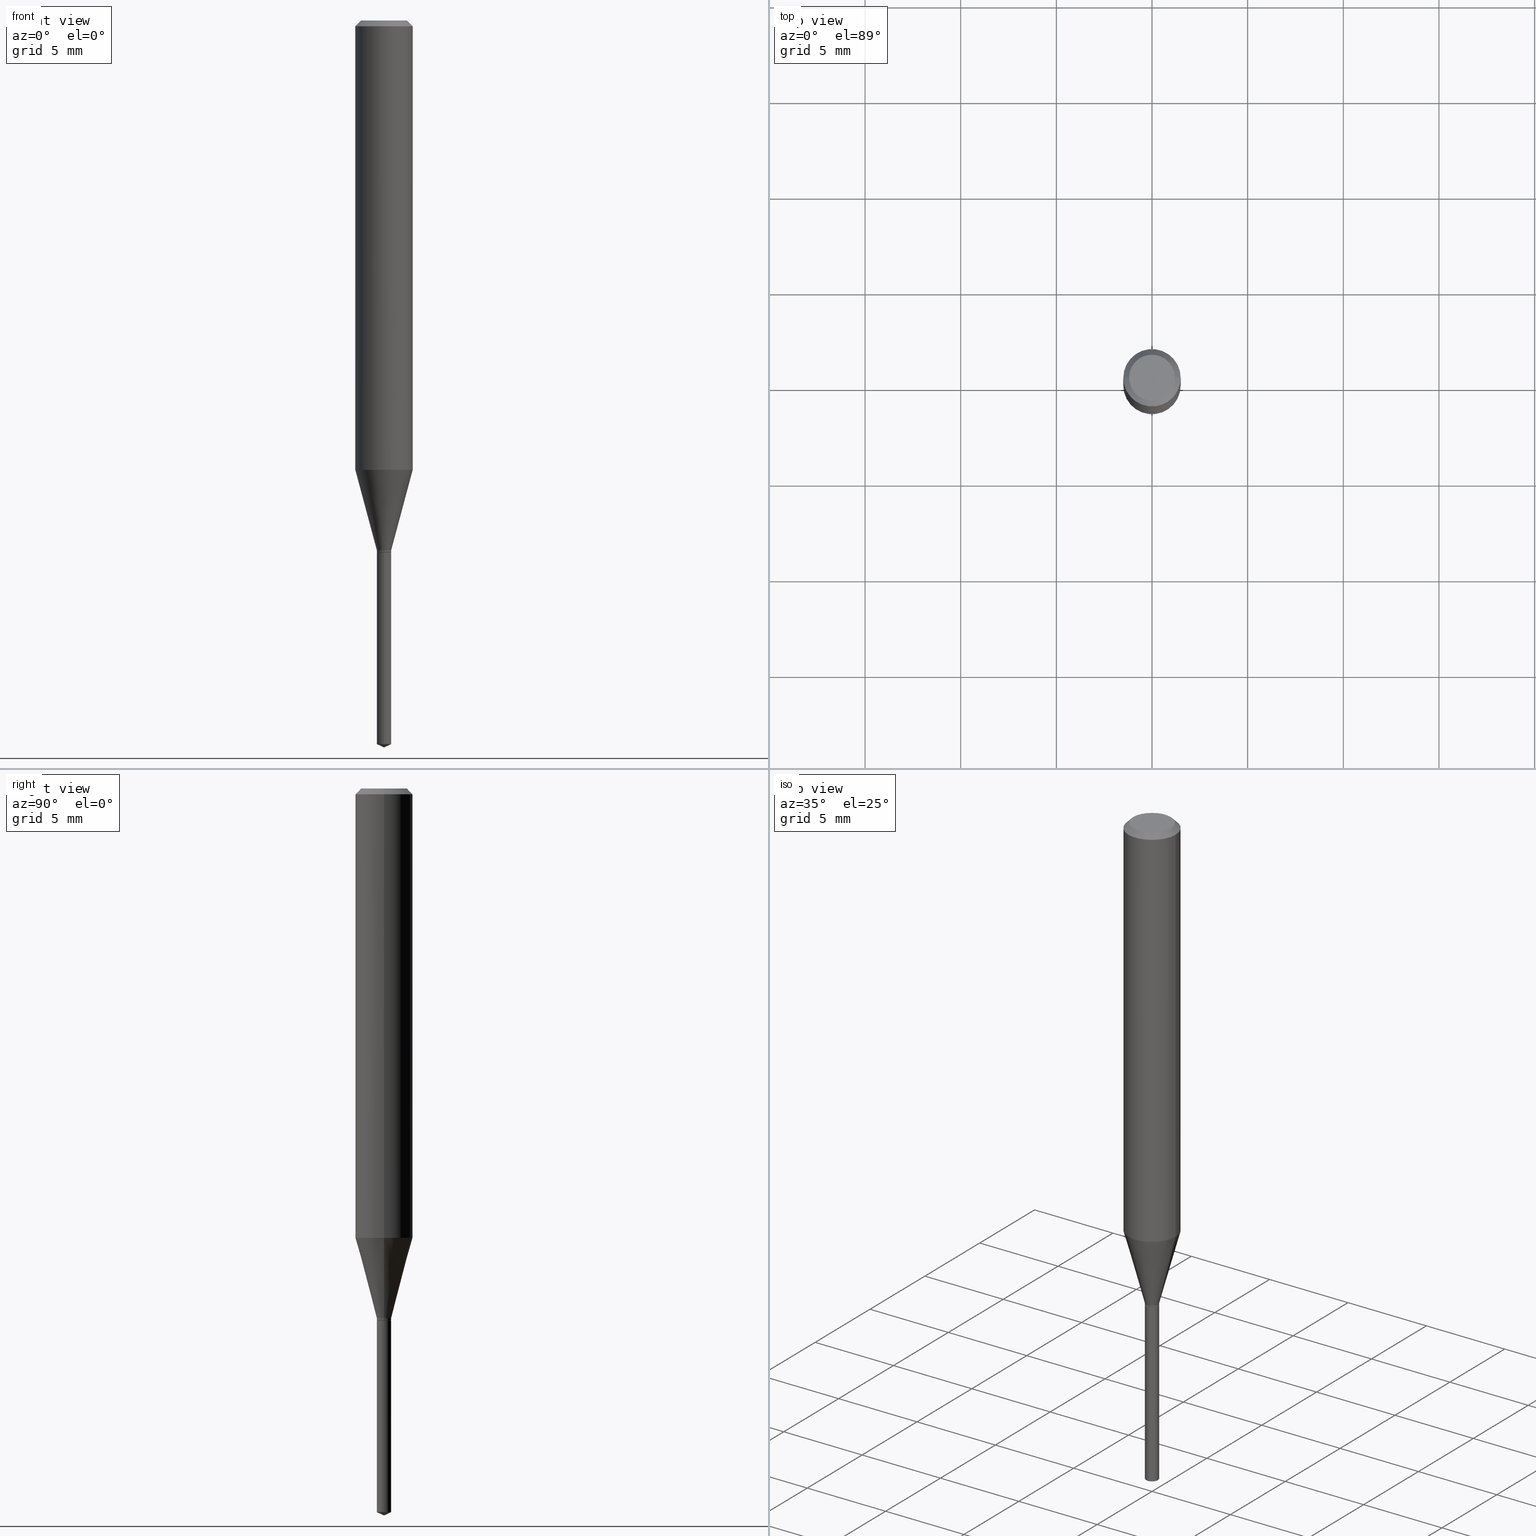
[diagram: canonical four-view strip — front | top / right | iso, engineering-drawing reading convention]
A machine part, canonical four-view strip (front | top / right | iso — engineering-drawing reading convention). The complete STEP part file that produces these views, byte-faithful:
ISO-10303-21;
HEADER;
FILE_DESCRIPTION (( 'STEP AP203' ),
    '1' );
FILE_NAME ('07450.STEP',
    '2024-04-23T21:34:43',
    ( '' ),
    ( '' ),
    'SwSTEP 2.0',
    'SolidWorks 2023',
    '' );
FILE_SCHEMA (( 'CONFIG_CONTROL_DESIGN' ));
ENDSEC;

DATA;
#1 = DIRECTION ( 'NONE',  ( 1.000000000000000000, -6.982962677686266711E-15, 0.000000000000000000 ) ) ;
#2 = CARTESIAN_POINT ( 'NONE',  ( -0.04724000000000000421, 3.504923541997677355E-16, -3.380025165670481712E-19 ) ) ;
#3 = SECURITY_CLASSIFICATION ( '', '', #101 ) ;
#4 = EDGE_CURVE ( 'NONE', #388, #144, #290, .T. ) ;
#5 = DIRECTION ( 'NONE',  ( -2.445468806185136597E-29, 3.491481338843145583E-15, 1.000000000000000000 ) ) ;
#6 = AXIS2_PLACEMENT_3D ( 'NONE', #341, #329, #196 ) ;
#7 = CARTESIAN_POINT ( 'NONE',  ( -0.01474999999999999922, -3.701258753948297685E-15, -1.090099999999999847 ) ) ;
#8 = CARTESIAN_POINT ( 'NONE',  ( 0.01425000000000000051, -3.920933543520852421E-15, -1.094500000000000028 ) ) ;
#9 =( CONVERSION_BASED_UNIT ( 'INCH', #130 ) LENGTH_UNIT ( ) NAMED_UNIT ( #183 ) );
#10 = AXIS2_PLACEMENT_3D ( 'NONE', #361, #152, #107 ) ;
#11 = DIRECTION ( 'NONE',  ( -1.000000000000000000, 6.982962677686266711E-15, 0.000000000000000000 ) ) ;
#12 = EDGE_LOOP ( 'NONE', ( #395, #24, #54, #473 ) ) ;
#13 = DIRECTION ( 'NONE',  ( -2.445468806185136877E-29, 3.491481338843145188E-15, 1.000000000000000000 ) ) ;
#14 = VERTEX_POINT ( 'NONE', #63 ) ;
#15 = MANIFOLD_SOLID_BREP ( 'Body-Move/Copy2[2]', #141 ) ;
#16 = ADVANCED_FACE ( 'NONE', ( #215 ), #252, .T. ) ;
#17 = ORIENTED_EDGE ( 'NONE', *, *, #345, .F. ) ;
#18 = AXIS2_PLACEMENT_3D ( 'NONE', #406, #82, #260 ) ;
#19 = CARTESIAN_POINT ( 'NONE',  ( 0.05905000000000010935, -3.641161664854600986E-15, -0.9247701492246986898 ) ) ;
#20 = ORIENTED_EDGE ( 'NONE', *, *, #256, .F. ) ;
#21 = ADVANCED_FACE ( 'NONE', ( #365 ), #28, .F. ) ;
#22 = VERTEX_POINT ( 'NONE', #147 ) ;
#23 = FACE_OUTER_BOUND ( 'NONE', #356, .T. ) ;
#24 = ORIENTED_EDGE ( 'NONE', *, *, #184, .T. ) ;
#25 = PERSON_AND_ORGANIZATION ( #156, #133 ) ;
#26 = CC_DESIGN_APPROVAL ( #436, ( #3 ) ) ;
#27 = ADVANCED_FACE ( 'NONE', ( #444 ), #104, .T. ) ;
#28 = PLANE ( 'NONE',  #165 ) ;
#29 = DATE_AND_TIME ( #109, #305 ) ;
#30 = EDGE_CURVE ( 'NONE', #310, #244, #372, .T. ) ;
#31 = FACE_OUTER_BOUND ( 'NONE', #12, .T. ) ;
#32 = ORIENTED_EDGE ( 'NONE', *, *, #312, .T. ) ;
#33 = PERSON_AND_ORGANIZATION ( #156, #133 ) ;
#34 = LINE ( 'NONE', #7, #81 ) ;
#35 = ADVANCED_FACE ( 'NONE', ( #298 ), #181, .T. ) ;
#36 = APPROVAL_ROLE ( '' ) ;
#37 = LOCAL_TIME ( 17, 34, 43.00000000000000000, #446 ) ;
#38 = DIRECTION ( 'NONE',  ( -6.982962677686268288E-15, -1.000000000000000000, 3.520397390770381295E-15 ) ) ;
#39 = CC_DESIGN_DATE_AND_TIME_ASSIGNMENT ( #258, #363, ( #490 ) ) ;
#40 = PERSON_AND_ORGANIZATION ( #156, #133 ) ;
#41 = CIRCLE ( 'NONE', #206, 0.01425000000000000051 ) ;
#42 = CARTESIAN_POINT ( 'NONE',  ( -9.233795610522244144E-28, 1.326396681680586874E-13, 37.87397874015748300 ) ) ;
#43 = PLANE ( 'NONE',  #149 ) ;
#44 = CYLINDRICAL_SURFACE ( 'NONE', #437, 0.01474999999999999922 ) ;
#45 = EDGE_CURVE ( 'NONE', #68, #138, #456, .T. ) ;
#46 = DIRECTION ( 'NONE',  ( -0.2588190451025213501, 5.211531920934551042E-15, 0.9659258262890682012 ) ) ;
#47 = APPROVAL_PERSON_ORGANIZATION ( #368, #225, #36 ) ;
#48 = CARTESIAN_POINT ( 'NONE',  ( 2.888098660104664204E-31, -4.123439461173780263E-17, -0.01181000000000007218 ) ) ;
#49 = DIRECTION ( 'NONE',  ( -2.438240464739478767E-29, 3.501832735204973130E-15, 1.000000000000000000 ) ) ;
#50 = EDGE_LOOP ( 'NONE', ( #140, #180, #108, #391 ) ) ;
#51 = CARTESIAN_POINT ( 'NONE',  ( 3.647851559296734002E-29, -5.239091955140159425E-15, -1.496099999999999985 ) ) ;
#52 = LOCAL_TIME ( 17, 34, 43.00000000000000000, #145 ) ;
#53 = VECTOR ( 'NONE', #450, 39.37007874015748143 ) ;
#54 = ORIENTED_EDGE ( 'NONE', *, *, #86, .F. ) ;
#55 = VECTOR ( 'NONE', #318, 39.37007874015748143 ) ;
#56 = AXIS2_PLACEMENT_3D ( 'NONE', #371, #301, #162 ) ;
#57 = CARTESIAN_POINT ( 'NONE',  ( 4.132873053354867254E-48, -5.900647395337818946E-34, -1.690012582823346072E-19 ) ) ;
#58 = ORIENTED_EDGE ( 'NONE', *, *, #431, .F. ) ;
#59 = ORIENTED_EDGE ( 'NONE', *, *, #45, .T. ) ;
#60 = EDGE_LOOP ( 'NONE', ( #394, #59 ) ) ;
#61 = AXIS2_PLACEMENT_3D ( 'NONE', #264, #460, #360 ) ;
#62 = AXIS2_PLACEMENT_3D ( 'NONE', #265, #416, #427 ) ;
#63 = CARTESIAN_POINT ( 'NONE',  ( 1.048050535246511704E-16, 0.01474999999999479852, -1.489221962042213798 ) ) ;
#64 = LINE ( 'NONE', #386, #243 ) ;
#65 = EDGE_LOOP ( 'NONE', ( #251, #273, #370, #448 ) ) ;
#66 = EDGE_CURVE ( 'NONE', #282, #22, #237, .T. ) ;
#67 = PERSON_AND_ORGANIZATION ( #156, #133 ) ;
#68 = VERTEX_POINT ( 'NONE', #411 ) ;
#69 = APPLICATION_PROTOCOL_DEFINITION ( 'international standard', 'config_control_design', 1994, #146 ) ;
#70 = VECTOR ( 'NONE', #459, 39.37007874015748143 ) ;
#71 = DIRECTION ( 'NONE',  ( 1.000000000000000000, -6.982962677686267499E-15, 0.000000000000000000 ) ) ;
#72 = ORIENTED_EDGE ( 'NONE', *, *, #472, .T. ) ;
#73 = PERSON_AND_ORGANIZATION_ROLE ( 'creator' ) ;
#74 = ADVANCED_FACE ( 'NONE', ( #85 ), #44, .T. ) ;
#75 = CARTESIAN_POINT ( 'NONE',  ( 2.665805545622417047E-29, -3.806063807472912753E-15, -1.090099999999999847 ) ) ;
#76 = EDGE_LOOP ( 'NONE', ( #475, #175, #72, #98 ) ) ;
#77 = CARTESIAN_POINT ( 'NONE',  ( -0.05904999999999999832, -1.215450571208142207E-15, -0.01181000000000007218 ) ) ;
#78 = CARTESIAN_POINT ( 'NONE',  ( 0.000000000000000000, 0.000000000000000000, 0.000000000000000000 ) ) ;
#79 = AXIS2_PLACEMENT_3D ( 'NONE', #57, #178, #122 ) ;
#80 = AXIS2_PLACEMENT_3D ( 'NONE', #75, #455, #219 ) ;
#81 = VECTOR ( 'NONE', #46, 39.37007874015747433 ) ;
#82 = DIRECTION ( 'NONE',  ( -2.445468806185136597E-29, 3.491481338843145583E-15, 1.000000000000000000 ) ) ;
#83 = CONICAL_SURFACE ( 'NONE', #349, 84.42940631927608308, 1.134464013796323778 ) ;
#84 = CYLINDRICAL_SURFACE ( 'NONE', #314, 0.05905000000000005383 ) ;
#85 = FACE_OUTER_BOUND ( 'NONE', #94, .T. ) ;
#86 = EDGE_CURVE ( 'NONE', #353, #102, #266, .T. ) ;
#87 = CARTESIAN_POINT ( 'NONE',  ( 0.000000000000000000, 0.000000000000000000, 0.000000000000000000 ) ) ;
#88 = CARTESIAN_POINT ( 'NONE',  ( -1.029986994958456734E-16, -0.01475000000000382429, -1.094499999999999806 ) ) ;
#89 = DIRECTION ( 'NONE',  ( 2.445468806185136597E-29, -3.491481338843145583E-15, -1.000000000000000000 ) ) ;
#90 = EDGE_CURVE ( 'NONE', #102, #353, #203, .T. ) ;
#91 = DIRECTION ( 'NONE',  ( -6.982962677686265922E-15, -1.000000000000000000, 0.000000000000000000 ) ) ;
#92 = DIRECTION ( 'NONE',  ( -2.445468806185136597E-29, 3.491481338843145583E-15, 1.000000000000000000 ) ) ;
#93 = VECTOR ( 'NONE', #49, 39.37007874015748143 ) ;
#94 = EDGE_LOOP ( 'NONE', ( #210, #268, #478, #20 ) ) ;
#95 = EDGE_CURVE ( 'NONE', #220, #244, #171, .T. ) ;
#96 = ORIENTED_EDGE ( 'NONE', *, *, #222, .F. ) ;
#97 = DIRECTION ( 'NONE',  ( 1.000000000000000000, -6.982962677686267499E-15, 0.000000000000000000 ) ) ;
#98 = ORIENTED_EDGE ( 'NONE', *, *, #45, .F. ) ;
#99 = ORIENTED_EDGE ( 'NONE', *, *, #170, .F. ) ;
#100 = EDGE_LOOP ( 'NONE', ( #177, #430, #17 ) ) ;
#101 = SECURITY_CLASSIFICATION_LEVEL ( 'unclassified' ) ;
#102 = VERTEX_POINT ( 'NONE', #315 ) ;
#103 = APPROVAL_ROLE ( '' ) ;
#104 = CYLINDRICAL_SURFACE ( 'NONE', #340, 0.01475000000000000096 ) ;
#105 = CALENDAR_DATE ( 2024, 23, 4 ) ;
#106 = CONICAL_SURFACE ( 'NONE', #348, 0.01474999999999999922, 0.2617993877991500740 ) ;
#107 = DIRECTION ( 'NONE',  ( -6.982962677686265922E-15, -1.000000000000000000, 0.000000000000000000 ) ) ;
#108 = ORIENTED_EDGE ( 'NONE', *, *, #235, .T. ) ;
#109 = CALENDAR_DATE ( 2024, 23, 4 ) ;
#110 = DIRECTION ( 'NONE',  ( -2.445468806185136597E-29, 3.491481338843145583E-15, 1.000000000000000000 ) ) ;
#111 = DATE_TIME_ROLE ( 'classification_date' ) ;
#112 = CARTESIAN_POINT ( 'NONE',  ( 8.265746106709734507E-48, -1.180129479067563789E-33, -3.380025165646692144E-19 ) ) ;
#113 = DIRECTION ( 'NONE',  ( 1.000000000000000000, -6.982962677686250933E-15, 0.000000000000000000 ) ) ;
#114 = APPROVAL_PERSON_ORGANIZATION ( #479, #436, #103 ) ;
#115 = DIRECTION ( 'NONE',  ( 1.000000000000000000, -6.982962677686266711E-15, 4.876185090822587894E-29 ) ) ;
#116 = CARTESIAN_POINT ( 'NONE',  ( 2.888098660104664204E-31, -4.123439461173780263E-17, -0.01181000000000007218 ) ) ;
#117 = EDGE_CURVE ( 'NONE', #382, #14, #199, .T. ) ;
#118 = CARTESIAN_POINT ( 'NONE',  ( -0.01474999999999999922, -3.708067142559041944E-15, -1.090099999999999847 ) ) ;
#119 = EDGE_CURVE ( 'NONE', #131, #310, #364, .T. ) ;
#120 = DIRECTION ( 'NONE',  ( 1.000000000000000000, -6.982962677686266711E-15, 4.876176775795935793E-29 ) ) ;
#121 = CARTESIAN_POINT ( 'NONE',  ( 2.676565608369631794E-29, -3.821426325363822773E-15, -1.094499999999999806 ) ) ;
#122 = DIRECTION ( 'NONE',  ( -1.000000000000000000, 6.982962677686265922E-15, -4.876176775795935793E-29 ) ) ;
#123 = AXIS2_PLACEMENT_3D ( 'NONE', #78, #286, #440 ) ;
#124 = CIRCLE ( 'NONE', #56, 0.01474999999999999922 ) ;
#125 = CARTESIAN_POINT ( 'NONE',  ( 3.663813146345668855E-29, -5.216432748504119886E-15, -1.496099999999999985 ) ) ;
#126 = AXIS2_PLACEMENT_3D ( 'NONE', #167, #209, #71 ) ;
#127 = ORIENTED_EDGE ( 'NONE', *, *, #414, .F. ) ;
#128 = CC_DESIGN_DATE_AND_TIME_ASSIGNMENT ( #247, #111, ( #3 ) ) ;
#129 = EDGE_LOOP ( 'NONE', ( #482, #367, #308, #287 ) ) ;
#130 = LENGTH_MEASURE_WITH_UNIT ( LENGTH_MEASURE( 0.02539999999999999897 ), #420 );
#131 = VERTEX_POINT ( 'NONE', #19 ) ;
#132 = FACE_OUTER_BOUND ( 'NONE', #65, .T. ) ;
#133 = ORGANIZATION ( 'UNSPECIFIED', 'UNSPECIFIED', '' ) ;
#134 = ORIENTED_EDGE ( 'NONE', *, *, #488, .T. ) ;
#135 = AXIS2_PLACEMENT_3D ( 'NONE', #246, #439, #362 ) ;
#136 = AXIS2_PLACEMENT_3D ( 'NONE', #457, #110, #1 ) ;
#137 = ORIENTED_EDGE ( 'NONE', *, *, #327, .F. ) ;
#138 = VERTEX_POINT ( 'NONE', #245 ) ;
#139 = ADVANCED_FACE ( 'NONE', ( #31 ), #399, .T. ) ;
#140 = ORIENTED_EDGE ( 'NONE', *, *, #208, .F. ) ;
#141 = CLOSED_SHELL ( 'NONE', ( #139, #355, #465, #336, #74, #211, #294, #323, #35, #380, #21, #442 ) ) ;
#142 = DATE_AND_TIME ( #218, #37 ) ;
#143 = APPROVAL ( #216, 'UNSPECIFIED' ) ;
#144 = VERTEX_POINT ( 'NONE', #317 ) ;
#145 = COORDINATED_UNIVERSAL_TIME_OFFSET ( 5, 0, .BEHIND. ) ;
#146 = APPLICATION_CONTEXT ( 'configuration controlled 3d designs of mechanical parts and assemblies' ) ;
#147 = CARTESIAN_POINT ( 'NONE',  ( 0.01474999999999999922, -3.909062506968784619E-15, -1.090099999999999847 ) ) ;
#148 = VERTEX_POINT ( 'NONE', #474 ) ;
#149 = AXIS2_PLACEMENT_3D ( 'NONE', #404, #334, #489 ) ;
#150 = PERSON_AND_ORGANIZATION_ROLE ( 'design_owner' ) ;
#151 = AXIS2_PLACEMENT_3D ( 'NONE', #389, #383, #11 ) ;
#152 = DIRECTION ( 'NONE',  ( -2.438240464739478767E-29, 3.501832735204973130E-15, 1.000000000000000000 ) ) ;
#153 = COORDINATED_UNIVERSAL_TIME_OFFSET ( 5, 0, .BEHIND. ) ;
#154 = DIRECTION ( 'NONE',  ( -2.445468806185136597E-29, 3.491481338843145583E-15, 1.000000000000000000 ) ) ;
#155 = DIRECTION ( 'NONE',  ( -2.438240464739478767E-29, 3.501832735204973130E-15, 1.000000000000000000 ) ) ;
#156 = PERSON ( 'UNSPECIFIED', 'UNSPECIFIED', 'UNSPECIFIED', ('UNSPECIFIED'), ('UNSPECIFIED'), ('UNSPECIFIED') ) ;
#157 = ADVANCED_FACE ( 'NONE', ( #280 ), #438, .T. ) ;
#158 = DIRECTION ( 'NONE',  ( -2.438240464739478767E-29, 3.501832735204973130E-15, 1.000000000000000000 ) ) ;
#159 = PRODUCT_DEFINITION_FORMATION_WITH_SPECIFIED_SOURCE ( 'ANY', '', #270, .NOT_KNOWN. ) ;
#160 = CIRCLE ( 'NONE', #6, 0.01474999999999999922 ) ;
#161 = LINE ( 'NONE', #226, #470 ) ;
#162 = DIRECTION ( 'NONE',  ( 1.000000000000000000, -6.982962677686250933E-15, 0.000000000000000000 ) ) ;
#163 = CARTESIAN_POINT ( 'NONE',  ( 1.048050535246415439E-16, 0.01474999999999617936, -1.094499999999999806 ) ) ;
#164 = DIRECTION ( 'NONE',  ( -2.445468806185136597E-29, 3.491481338843145583E-15, 1.000000000000000000 ) ) ;
#165 = AXIS2_PLACEMENT_3D ( 'NONE', #185, #324, #481 ) ;
#166 = DIRECTION ( 'NONE',  ( 1.000000000000000000, -6.982962677686280910E-15, 0.000000000000000000 ) ) ;
#167 = CARTESIAN_POINT ( 'NONE',  ( 2.261496552820174511E-29, -3.228817718737226460E-15, -0.9247701492246986898 ) ) ;
#168 = ORIENTED_EDGE ( 'NONE', *, *, #119, .F. ) ;
#169 = LINE ( 'NONE', #88, #93 ) ;
#170 = EDGE_CURVE ( 'NONE', #102, #282, #374, .T. ) ;
#171 = LINE ( 'NONE', #352, #223 ) ;
#172 = AXIS2_PLACEMENT_3D ( 'NONE', #267, #239, #350 ) ;
#173 = ORIENTED_EDGE ( 'NONE', *, *, #263, .F. ) ;
#174 = CARTESIAN_POINT ( 'NONE',  ( 2.676565608369632355E-29, -3.821426325363822773E-15, -1.094500000000000028 ) ) ;
#175 = ORIENTED_EDGE ( 'NONE', *, *, #345, .T. ) ;
#176 = ADVANCED_FACE ( 'NONE', ( #337 ), #83, .T. ) ;
#177 = ORIENTED_EDGE ( 'NONE', *, *, #117, .F. ) ;
#178 = DIRECTION ( 'NONE',  ( 2.438088387897960049E-29, -3.491481338843145188E-15, -1.000000000000000000 ) ) ;
#179 = AXIS2_PLACEMENT_3D ( 'NONE', #48, #92, #271 ) ;
#180 = ORIENTED_EDGE ( 'NONE', *, *, #66, .T. ) ;
#181 = CONICAL_SURFACE ( 'NONE', #393, 0.05904999999999999832, 0.7853981633974452814 ) ;
#182 = PERSON_AND_ORGANIZATION ( #156, #133 ) ;
#183 = DIMENSIONAL_EXPONENTS ( 1.000000000000000000, 0.000000000000000000, 0.000000000000000000, 0.000000000000000000, 0.000000000000000000, 0.000000000000000000, 0.000000000000000000 ) ;
#184 = EDGE_CURVE ( 'NONE', #148, #102, #253, .T. ) ;
#185 = CARTESIAN_POINT ( 'NONE',  ( -4.649438489792415763E-29, -1.431268116419026611E-14, -1.094500000000000028 ) ) ;
#186 = APPROVAL_DATE_TIME ( #29, #436 ) ;
#187 = ORIENTED_EDGE ( 'NONE', *, *, #472, .F. ) ;
#188 = PERSON_AND_ORGANIZATION_ROLE ( 'classification_officer' ) ;
#189 = CYLINDRICAL_SURFACE ( 'NONE', #425, 0.01474999999999999922 ) ;
#190 = CIRCLE ( 'NONE', #347, 0.01475000000000000443 ) ;
#191 = VECTOR ( 'NONE', #192, 39.37007874015748143 ) ;
#192 = DIRECTION ( 'NONE',  ( -0.7071067811864253372, 7.493145998869912398E-15, 0.7071067811866698083 ) ) ;
#193 = LINE ( 'NONE', #221, #275 ) ;
#194 = CC_DESIGN_PERSON_AND_ORGANIZATION_ASSIGNMENT ( #33, #476, ( #159 ) ) ;
#195 = DIRECTION ( 'NONE',  ( -2.445468806185136877E-29, 3.491481338843145188E-15, 1.000000000000000000 ) ) ;
#196 = DIRECTION ( 'NONE',  ( -6.982962677686265922E-15, -1.000000000000000000, 0.000000000000000000 ) ) ;
#197 = FACE_OUTER_BOUND ( 'NONE', #421, .T. ) ;
#198 = DIRECTION ( 'NONE',  ( -2.445468806185136597E-29, 3.491481338843145583E-15, 1.000000000000000000 ) ) ;
#199 = LINE ( 'NONE', #125, #331 ) ;
#200 = ORIENTED_EDGE ( 'NONE', *, *, #256, .T. ) ;
#201 =( GEOMETRIC_REPRESENTATION_CONTEXT ( 3 ) GLOBAL_UNCERTAINTY_ASSIGNED_CONTEXT ( ( #445 ) ) GLOBAL_UNIT_ASSIGNED_CONTEXT ( ( #9, #325, #328 ) ) REPRESENTATION_CONTEXT ( 'NONE', 'WORKASPACE' ) );
#202 = CARTESIAN_POINT ( 'NONE',  ( 3.638992668542317999E-29, -5.203676613347582529E-15, -1.489221962042213798 ) ) ;
#203 = CIRCLE ( 'NONE', #299, 0.01474999999999999922 ) ;
#204 = CARTESIAN_POINT ( 'NONE',  ( 2.675342873966538993E-29, -3.819680584694400481E-15, -1.093999999999999861 ) ) ;
#205 = CARTESIAN_POINT ( 'NONE',  ( 0.04724000000000000421, -3.852183633974369345E-16, -3.380025165621689721E-19 ) ) ;
#206 = AXIS2_PLACEMENT_3D ( 'NONE', #303, #154, #295 ) ;
#207 = ORIENTED_EDGE ( 'NONE', *, *, #235, .F. ) ;
#208 = EDGE_CURVE ( 'NONE', #282, #310, #34, .T. ) ;
#209 = DIRECTION ( 'NONE',  ( -2.445468806185136597E-29, 3.491481338843145583E-15, 1.000000000000000000 ) ) ;
#210 = ORIENTED_EDGE ( 'NONE', *, *, #86, .T. ) ;
#211 = ADVANCED_FACE ( 'NONE', ( #292 ), #189, .T. ) ;
#212 = DIRECTION ( 'NONE',  ( 1.000000000000000000, -6.982962677686250933E-15, 0.000000000000000000 ) ) ;
#213 = ORIENTED_EDGE ( 'NONE', *, *, #284, .T. ) ;
#214 = AXIS2_PLACEMENT_3D ( 'NONE', #112, #369, #115 ) ;
#215 = FACE_OUTER_BOUND ( 'NONE', #100, .T. ) ;
#216 = APPROVAL_STATUS ( 'not_yet_approved' ) ;
#217 = EDGE_LOOP ( 'NONE', ( #127, #434 ) ) ;
#218 = CALENDAR_DATE ( 2024, 23, 4 ) ;
#219 = DIRECTION ( 'NONE',  ( 1.000000000000000000, -6.982962677686250933E-15, 0.000000000000000000 ) ) ;
#220 = VERTEX_POINT ( 'NONE', #2 ) ;
#221 = CARTESIAN_POINT ( 'NONE',  ( 3.647851559296734002E-29, -5.239091955140159425E-15, -1.496099999999999985 ) ) ;
#222 = EDGE_CURVE ( 'NONE', #138, #68, #160, .T. ) ;
#223 = VECTOR ( 'NONE', #461, 39.37007874015748143 ) ;
#224 = LINE ( 'NONE', #228, #53 ) ;
#225 = APPROVAL ( #373, 'UNSPECIFIED' ) ;
#226 = CARTESIAN_POINT ( 'NONE',  ( 0.01474999999999999922, -3.909062506968784619E-15, -1.090099999999999847 ) ) ;
#227 = EDGE_CURVE ( 'NONE', #382, #285, #193, .T. ) ;
#228 = CARTESIAN_POINT ( 'NONE',  ( 0.01474999999999999922, -1.029986994958724207E-16, 7.192360744299004874E-31 ) ) ;
#229 = CIRCLE ( 'NONE', #214, 0.04724000000000000421 ) ;
#230 = CC_DESIGN_PERSON_AND_ORGANIZATION_ASSIGNMENT ( #405, #188, ( #3 ) ) ;
#231 = FACE_OUTER_BOUND ( 'NONE', #428, .T. ) ;
#232 = DIRECTION ( 'NONE',  ( 6.439704144417051652E-15, 0.9063077870366553768, 0.4226182617406875619 ) ) ;
#233 = ORIENTED_EDGE ( 'NONE', *, *, #90, .F. ) ;
#234 = CARTESIAN_POINT ( 'NONE',  ( 0.01474999999999999922, -3.922679284190273136E-15, -1.093999999999999861 ) ) ;
#235 = EDGE_CURVE ( 'NONE', #22, #131, #161, .T. ) ;
#236 = CARTESIAN_POINT ( 'NONE',  ( 0.01425000000000000051, -3.920933543520852421E-15, -1.094500000000000028 ) ) ;
#237 = CIRCLE ( 'NONE', #486, 0.01474999999999999922 ) ;
#238 = ORIENTED_EDGE ( 'NONE', *, *, #261, .T. ) ;
#239 = DIRECTION ( 'NONE',  ( -2.445468806185136597E-29, 3.491481338843145583E-15, 1.000000000000000000 ) ) ;
#240 = DIRECTION ( 'NONE',  ( -2.445468806185136597E-29, 3.491481338843145583E-15, 1.000000000000000000 ) ) ;
#241 = ORIENTED_EDGE ( 'NONE', *, *, #452, .T. ) ;
#242 = ADVANCED_FACE ( 'NONE', ( #453 ), #43, .F. ) ;
#243 = VECTOR ( 'NONE', #13, 39.37007874015748143 ) ;
#244 = VERTEX_POINT ( 'NONE', #77 ) ;
#245 = CARTESIAN_POINT ( 'NONE',  ( -1.029986994958456610E-16, -0.01475000000000382255, -1.094499999999999806 ) ) ;
#246 = CARTESIAN_POINT ( 'NONE',  ( -9.233795610522244144E-28, 1.326396681680586874E-13, 37.87397874015748300 ) ) ;
#247 = DATE_AND_TIME ( #483, #424 ) ;
#248 = CARTESIAN_POINT ( 'NONE',  ( 0.05904999999999999832, -4.463468013801466955E-16, -0.01181000000000007218 ) ) ;
#249 = EDGE_LOOP ( 'NONE', ( #402, #134, #471, #58 ) ) ;
#250 = COORDINATED_UNIVERSAL_TIME_OFFSET ( 5, 0, .BEHIND. ) ;
#251 = ORIENTED_EDGE ( 'NONE', *, *, #312, .F. ) ;
#252 = CONICAL_SURFACE ( 'NONE', #135, 84.42940631927608308, 1.134464013796323778 ) ;
#253 = LINE ( 'NONE', #297, #191 ) ;
#254 = EDGE_LOOP ( 'NONE', ( #321, #277, #173, #137 ) ) ;
#255 = SHAPE_DEFINITION_REPRESENTATION ( #429, #300 ) ;
#256 = EDGE_CURVE ( 'NONE', #353, #22, #224, .T. ) ;
#257 = DIRECTION ( 'NONE',  ( 0.2588190451025213501, 1.565188264969621968E-15, 0.9659258262890682012 ) ) ;
#258 = DATE_AND_TIME ( #291, #52 ) ;
#259 = CARTESIAN_POINT ( 'NONE',  ( -0.05905000000000010935, -2.809242233270886178E-15, -0.9247701492246986898 ) ) ;
#260 = DIRECTION ( 'NONE',  ( 1.000000000000000000, -6.982962677686266711E-15, 4.876185090822587894E-29 ) ) ;
#261 = EDGE_CURVE ( 'NONE', #22, #282, #124, .T. ) ;
#262 = CARTESIAN_POINT ( 'NONE',  ( -1.029986994958360221E-16, -0.01475000000000520686, -1.489221962042213798 ) ) ;
#263 = EDGE_CURVE ( 'NONE', #144, #244, #342, .T. ) ;
#264 = CARTESIAN_POINT ( 'NONE',  ( 3.638992668542317999E-29, -5.203676613347582529E-15, -1.489221962042213798 ) ) ;
#265 = CARTESIAN_POINT ( 'NONE',  ( 2.675342873966538993E-29, -3.819680584694400481E-15, -1.093999999999999861 ) ) ;
#266 = CIRCLE ( 'NONE', #62, 0.01474999999999999922 ) ;
#267 = CARTESIAN_POINT ( 'NONE',  ( 2.676565608369632355E-29, -3.821426325363822773E-15, -1.094500000000000028 ) ) ;
#268 = ORIENTED_EDGE ( 'NONE', *, *, #170, .T. ) ;
#269 = CARTESIAN_POINT ( 'NONE',  ( 2.676565608369632355E-29, -3.821426325363822773E-15, -1.094500000000000028 ) ) ;
#270 = PRODUCT ( '07450', '07450', '', ( #293 ) ) ;
#271 = DIRECTION ( 'NONE',  ( 1.000000000000000000, -6.982962677686266711E-15, 0.000000000000000000 ) ) ;
#272 = ORIENTED_EDGE ( 'NONE', *, *, #117, .T. ) ;
#273 = ORIENTED_EDGE ( 'NONE', *, *, #4, .T. ) ;
#274 = LINE ( 'NONE', #163, #417 ) ;
#275 = VECTOR ( 'NONE', #401, 39.37007874015748854 ) ;
#276 = EDGE_LOOP ( 'NONE', ( #99, #304, #200, #326 ) ) ;
#277 = ORIENTED_EDGE ( 'NONE', *, *, #30, .T. ) ;
#278 = CC_DESIGN_PERSON_AND_ORGANIZATION_ASSIGNMENT ( #40, #73, ( #490 ) ) ;
#279 = ORIENTED_EDGE ( 'NONE', *, *, #208, .T. ) ;
#280 = FACE_OUTER_BOUND ( 'NONE', #76, .T. ) ;
#281 = CIRCLE ( 'NONE', #61, 0.01475000000000000443 ) ;
#282 = VERTEX_POINT ( 'NONE', #118 ) ;
#283 = VECTOR ( 'NONE', #195, 39.37007874015748143 ) ;
#284 = EDGE_CURVE ( 'NONE', #148, #468, #41, .T. ) ;
#285 = VERTEX_POINT ( 'NONE', #262 ) ;
#286 = DIRECTION ( 'NONE',  ( 0.000000000000000000, 0.000000000000000000, 1.000000000000000000 ) ) ;
#287 = ORIENTED_EDGE ( 'NONE', *, *, #431, .T. ) ;
#288 = APPROVAL_ROLE ( '' ) ;
#289 = CONICAL_SURFACE ( 'NONE', #80, 0.01474999999999999922, 0.2617993877991500740 ) ;
#290 = LINE ( 'NONE', #248, #55 ) ;
#291 = CALENDAR_DATE ( 2024, 23, 4 ) ;
#292 = FACE_OUTER_BOUND ( 'NONE', #276, .T. ) ;
#293 = MECHANICAL_CONTEXT ( 'NONE', #432, 'mechanical' ) ;
#294 = ADVANCED_FACE ( 'NONE', ( #376 ), #289, .T. ) ;
#295 = DIRECTION ( 'NONE',  ( 1.000000000000000000, -6.982962677686280910E-15, 0.000000000000000000 ) ) ;
#296 = DIRECTION ( 'NONE',  ( -6.982962677686265922E-15, -1.000000000000000000, 0.000000000000000000 ) ) ;
#297 = CARTESIAN_POINT ( 'NONE',  ( -0.01425000000000000051, -3.720173985518008604E-15, -1.094500000000000028 ) ) ;
#298 = FACE_OUTER_BOUND ( 'NONE', #129, .T. ) ;
#299 = AXIS2_PLACEMENT_3D ( 'NONE', #204, #240, #390 ) ;
#300 = ADVANCED_BREP_SHAPE_REPRESENTATION ( '07450', ( #351, #15, #123 ), #201 ) ;
#301 = DIRECTION ( 'NONE',  ( -2.445468806185136597E-29, 3.491481338843145583E-15, 1.000000000000000000 ) ) ;
#302 = CC_DESIGN_PERSON_AND_ORGANIZATION_ASSIGNMENT ( #67, #150, ( #270 ) ) ;
#303 = CARTESIAN_POINT ( 'NONE',  ( 2.676565608369632355E-29, -3.821426325363822773E-15, -1.094500000000000028 ) ) ;
#304 = ORIENTED_EDGE ( 'NONE', *, *, #90, .T. ) ;
#305 = LOCAL_TIME ( 17, 34, 43.00000000000000000, #250 ) ;
#306 = EDGE_CURVE ( 'NONE', #220, #388, #229, .T. ) ;
#307 = DIRECTION ( 'NONE',  ( 0.7071067811864253372, -2.468850131080976739E-15, 0.7071067811866698083 ) ) ;
#308 = ORIENTED_EDGE ( 'NONE', *, *, #95, .T. ) ;
#309 = CARTESIAN_POINT ( 'NONE',  ( 0.000000000000000000, 0.000000000000000000, 0.000000000000000000 ) ) ;
#310 = VERTEX_POINT ( 'NONE', #259 ) ;
#311 = DIRECTION ( 'NONE',  ( -2.438240464739478767E-29, 3.501832735204973130E-15, 1.000000000000000000 ) ) ;
#312 = EDGE_CURVE ( 'NONE', #388, #220, #398, .T. ) ;
#313 = ORIENTED_EDGE ( 'NONE', *, *, #306, .T. ) ;
#314 = AXIS2_PLACEMENT_3D ( 'NONE', #375, #346, #381 ) ;
#315 = CARTESIAN_POINT ( 'NONE',  ( -0.01474999999999999922, -3.708067142559041944E-15, -1.093999999999999861 ) ) ;
#316 = ORIENTED_EDGE ( 'NONE', *, *, #423, .T. ) ;
#317 = CARTESIAN_POINT ( 'NONE',  ( 0.05904999999999999832, -4.535783407291118600E-16, -0.01181000000000007218 ) ) ;
#318 = DIRECTION ( 'NONE',  ( 0.7071067811865453523, -7.319954787623248157E-15, -0.7071067811865496822 ) ) ;
#319 = CC_DESIGN_APPROVAL ( #143, ( #159 ) ) ;
#320 = DIRECTION ( 'NONE',  ( -2.445468806185136597E-29, 3.491481338843145583E-15, 1.000000000000000000 ) ) ;
#321 = ORIENTED_EDGE ( 'NONE', *, *, #119, .T. ) ;
#322 = APPLICATION_PROTOCOL_DEFINITION ( 'international standard', 'config_control_design', 1994, #432 ) ;
#323 = ADVANCED_FACE ( 'NONE', ( #410 ), #84, .T. ) ;
#324 = DIRECTION ( 'NONE',  ( -2.438088387897960049E-29, 3.491481338843145188E-15, 1.000000000000000000 ) ) ;
#325 =( NAMED_UNIT ( * ) PLANE_ANGLE_UNIT ( ) SI_UNIT ( $, .RADIAN. ) );
#326 = ORIENTED_EDGE ( 'NONE', *, *, #66, .F. ) ;
#327 = EDGE_CURVE ( 'NONE', #131, #144, #64, .T. ) ;
#328 =( NAMED_UNIT ( * ) SI_UNIT ( $, .STERADIAN. ) SOLID_ANGLE_UNIT ( ) );
#329 = DIRECTION ( 'NONE',  ( -2.438240464739478767E-29, 3.501832735204973130E-15, 1.000000000000000000 ) ) ;
#330 = CC_DESIGN_APPROVAL ( #225, ( #490 ) ) ;
#331 = VECTOR ( 'NONE', #232, 39.37007874015748854 ) ;
#332 = DIRECTION ( 'NONE',  ( 1.000000000000000000, -6.982962677686265922E-15, 4.876176775795935793E-29 ) ) ;
#333 = DIRECTION ( 'NONE',  ( -2.438240464739478767E-29, 3.501832735204973130E-15, 1.000000000000000000 ) ) ;
#334 = DIRECTION ( 'NONE',  ( 2.438240464739478487E-29, -3.501832735204973130E-15, -1.000000000000000000 ) ) ;
#335 = CARTESIAN_POINT ( 'NONE',  ( -0.05905000000000005383, 4.195754854663395423E-16, -2.904631170795524694E-30 ) ) ;
#336 = ADVANCED_FACE ( 'NONE', ( #197 ), #106, .T. ) ;
#337 = FACE_OUTER_BOUND ( 'NONE', #359, .T. ) ;
#338 = CARTESIAN_POINT ( 'NONE',  ( 0.000000000000000000, 0.000000000000000000, 0.000000000000000000 ) ) ;
#339 = AXIS2_PLACEMENT_3D ( 'NONE', #309, #344, #120 ) ;
#340 = AXIS2_PLACEMENT_3D ( 'NONE', #343, #333, #487 ) ;
#341 = CARTESIAN_POINT ( 'NONE',  ( 2.676565608369631794E-29, -3.821426325363822773E-15, -1.094499999999999806 ) ) ;
#342 = CIRCLE ( 'NONE', #136, 0.05904999999999999832 ) ;
#343 = CARTESIAN_POINT ( 'NONE',  ( 2.676565608369631794E-29, -3.821426325363822773E-15, -1.094499999999999806 ) ) ;
#344 = DIRECTION ( 'NONE',  ( -2.445468806185136597E-29, 3.491481338843145583E-15, 1.000000000000000000 ) ) ;
#345 = EDGE_CURVE ( 'NONE', #14, #285, #281, .T. ) ;
#346 = DIRECTION ( 'NONE',  ( -2.445468806185136597E-29, 3.491481338843145583E-15, 1.000000000000000000 ) ) ;
#347 = AXIS2_PLACEMENT_3D ( 'NONE', #202, #354, #91 ) ;
#348 = AXIS2_PLACEMENT_3D ( 'NONE', #464, #164, #212 ) ;
#349 = AXIS2_PLACEMENT_3D ( 'NONE', #42, #158, #38 ) ;
#350 = DIRECTION ( 'NONE',  ( 1.000000000000000000, -6.982962677686280910E-15, 0.000000000000000000 ) ) ;
#351 = MANIFOLD_SOLID_BREP ( 'Body-Move/Copy2[1]', #385 ) ;
#352 = CARTESIAN_POINT ( 'NONE',  ( -0.05904999999999999832, 3.711095515056362547E-16, -0.01181000000000007218 ) ) ;
#353 = VERTEX_POINT ( 'NONE', #234 ) ;
#354 = DIRECTION ( 'NONE',  ( -2.438240464739478767E-29, 3.501832735204973130E-15, 1.000000000000000000 ) ) ;
#355 = ADVANCED_FACE ( 'NONE', ( #132 ), #435, .T. ) ;
#356 = EDGE_LOOP ( 'NONE', ( #313, #32 ) ) ;
#357 = ORIENTED_EDGE ( 'NONE', *, *, #184, .F. ) ;
#358 = AXIS2_PLACEMENT_3D ( 'NONE', #269, #198, #166 ) ;
#359 = EDGE_LOOP ( 'NONE', ( #387, #272, #441 ) ) ;
#360 = DIRECTION ( 'NONE',  ( -6.982962677686265922E-15, -1.000000000000000000, 0.000000000000000000 ) ) ;
#361 = CARTESIAN_POINT ( 'NONE',  ( 2.676565608369631794E-29, -3.821426325363822773E-15, -1.094499999999999806 ) ) ;
#362 = DIRECTION ( 'NONE',  ( -6.982962677686268288E-15, -1.000000000000000000, 3.520397390770381295E-15 ) ) ;
#363 = DATE_TIME_ROLE ( 'creation_date' ) ;
#364 = CIRCLE ( 'NONE', #126, 0.05905000000000010935 ) ;
#365 = FACE_OUTER_BOUND ( 'NONE', #217, .T. ) ;
#366 = APPROVAL_STATUS ( 'not_yet_approved' ) ;
#367 = ORIENTED_EDGE ( 'NONE', *, *, #306, .F. ) ;
#368 = PERSON_AND_ORGANIZATION ( #156, #133 ) ;
#369 = DIRECTION ( 'NONE',  ( -2.445468806185136597E-29, 3.491481338843145583E-15, 1.000000000000000000 ) ) ;
#370 = ORIENTED_EDGE ( 'NONE', *, *, #263, .T. ) ;
#371 = CARTESIAN_POINT ( 'NONE',  ( 2.665805545622417047E-29, -3.806063807472912753E-15, -1.090099999999999847 ) ) ;
#372 = LINE ( 'NONE', #335, #70 ) ;
#373 = APPROVAL_STATUS ( 'not_yet_approved' ) ;
#374 = LINE ( 'NONE', #412, #283 ) ;
#375 = CARTESIAN_POINT ( 'NONE',  ( 0.000000000000000000, 0.000000000000000000, 0.000000000000000000 ) ) ;
#376 = FACE_OUTER_BOUND ( 'NONE', #50, .T. ) ;
#377 = DIRECTION ( 'NONE',  ( 1.000000000000000000, -6.982962677686265922E-15, 4.876176775795935793E-29 ) ) ;
#378 = CIRCLE ( 'NONE', #179, 0.05904999999999999832 ) ;
#379 = PLANE ( 'NONE',  #79 ) ;
#380 = ADVANCED_FACE ( 'NONE', ( #23 ), #379, .F. ) ;
#381 = DIRECTION ( 'NONE',  ( 1.000000000000000000, -6.982962677686266711E-15, 4.876176775795935793E-29 ) ) ;
#382 = VERTEX_POINT ( 'NONE', #51 ) ;
#383 = DIRECTION ( 'NONE',  ( 2.445468806185136597E-29, -3.491481338843145583E-15, -1.000000000000000000 ) ) ;
#384 = CC_DESIGN_SECURITY_CLASSIFICATION ( #3, ( #159 ) ) ;
#385 = CLOSED_SHELL ( 'NONE', ( #27, #176, #16, #157, #242 ) ) ;
#386 = CARTESIAN_POINT ( 'NONE',  ( 0.05905000000000005383, -4.123439461173744271E-16, 2.879382386107502672E-30 ) ) ;
#387 = ORIENTED_EDGE ( 'NONE', *, *, #227, .F. ) ;
#388 = VERTEX_POINT ( 'NONE', #205 ) ;
#389 = CARTESIAN_POINT ( 'NONE',  ( 2.888098660104664204E-31, -4.123439461173780263E-17, -0.01181000000000007218 ) ) ;
#390 = DIRECTION ( 'NONE',  ( 1.000000000000000000, -6.982962677686250933E-15, 0.000000000000000000 ) ) ;
#391 = ORIENTED_EDGE ( 'NONE', *, *, #488, .F. ) ;
#392 = LOCAL_TIME ( 17, 34, 43.00000000000000000, #153 ) ;
#393 = AXIS2_PLACEMENT_3D ( 'NONE', #116, #89, #413 ) ;
#394 = ORIENTED_EDGE ( 'NONE', *, *, #222, .T. ) ;
#395 = ORIENTED_EDGE ( 'NONE', *, *, #414, .T. ) ;
#396 = DATE_AND_TIME ( #105, #392 ) ;
#397 = ORIENTED_EDGE ( 'NONE', *, *, #480, .T. ) ;
#398 = CIRCLE ( 'NONE', #18, 0.04724000000000000421 ) ;
#399 = CONICAL_SURFACE ( 'NONE', #463, 0.01425000000000000051, 0.7853981633972754173 ) ;
#400 = EDGE_LOOP ( 'NONE', ( #316, #397, #96, #187 ) ) ;
#401 = DIRECTION ( 'NONE',  ( -6.328713451373396989E-15, -0.9063077870366524902, 0.4226182617406938902 ) ) ;
#402 = ORIENTED_EDGE ( 'NONE', *, *, #30, .F. ) ;
#403 = APPROVAL_DATE_TIME ( #142, #143 ) ;
#404 = CARTESIAN_POINT ( 'NONE',  ( 2.676565608369631794E-29, -3.821426325363822773E-15, -1.094499999999999806 ) ) ;
#405 = PERSON_AND_ORGANIZATION ( #156, #133 ) ;
#406 = CARTESIAN_POINT ( 'NONE',  ( 8.265746106709734507E-48, -1.180129479067563789E-33, -3.380025165646692144E-19 ) ) ;
#407 = AXIS2_PLACEMENT_3D ( 'NONE', #426, #466, #97 ) ;
#408 = CARTESIAN_POINT ( 'NONE',  ( 2.665805545622417047E-29, -3.806063807472912753E-15, -1.090099999999999847 ) ) ;
#409 = DESIGN_CONTEXT ( 'detailed design', #146, 'design' ) ;
#410 = FACE_OUTER_BOUND ( 'NONE', #249, .T. ) ;
#411 = CARTESIAN_POINT ( 'NONE',  ( 1.048050535246512444E-16, 0.01474999999999617416, -1.094499999999999806 ) ) ;
#412 = CARTESIAN_POINT ( 'NONE',  ( -0.01474999999999999922, 1.048050535246147719E-16, -7.255429258125985832E-31 ) ) ;
#413 = DIRECTION ( 'NONE',  ( -1.000000000000000000, 6.982962677686266711E-15, 0.000000000000000000 ) ) ;
#414 = EDGE_CURVE ( 'NONE', #468, #148, #484, .T. ) ;
#415 = CYLINDRICAL_SURFACE ( 'NONE', #339, 0.05905000000000005383 ) ;
#416 = DIRECTION ( 'NONE',  ( -2.445468806185136597E-29, 3.491481338843145583E-15, 1.000000000000000000 ) ) ;
#417 = VECTOR ( 'NONE', #311, 39.37007874015748143 ) ;
#418 = AXIS2_PLACEMENT_3D ( 'NONE', #121, #155, #296 ) ;
#419 = CC_DESIGN_PERSON_AND_ORGANIZATION_ASSIGNMENT ( #182, #449, ( #159 ) ) ;
#420 =( LENGTH_UNIT ( ) NAMED_UNIT ( * ) SI_UNIT ( $, .METRE. ) );
#421 = EDGE_LOOP ( 'NONE', ( #238, #279, #168, #207 ) ) ;
#422 = LINE ( 'NONE', #236, #447 ) ;
#423 = EDGE_CURVE ( 'NONE', #285, #14, #190, .T. ) ;
#424 = LOCAL_TIME ( 17, 34, 43.00000000000000000, #443 ) ;
#425 = AXIS2_PLACEMENT_3D ( 'NONE', #87, #485, #332 ) ;
#426 = CARTESIAN_POINT ( 'NONE',  ( 2.261496552820174511E-29, -3.228817718737226460E-15, -0.9247701492246986898 ) ) ;
#427 = DIRECTION ( 'NONE',  ( 1.000000000000000000, -6.982962677686250933E-15, 0.000000000000000000 ) ) ;
#428 = EDGE_LOOP ( 'NONE', ( #357, #213, #241, #233 ) ) ;
#429 = PRODUCT_DEFINITION_SHAPE ( 'NONE', 'NONE',  #490 ) ;
#430 = ORIENTED_EDGE ( 'NONE', *, *, #227, .T. ) ;
#431 = EDGE_CURVE ( 'NONE', #244, #144, #378, .T. ) ;
#432 = APPLICATION_CONTEXT ( 'configuration controlled 3d designs of mechanical parts and assemblies' ) ;
#433 = DIRECTION ( 'NONE',  ( 1.000000000000000000, -6.982962677686280910E-15, 0.000000000000000000 ) ) ;
#434 = ORIENTED_EDGE ( 'NONE', *, *, #284, .F. ) ;
#435 = CONICAL_SURFACE ( 'NONE', #151, 0.05904999999999999832, 0.7853981633974452814 ) ;
#436 = APPROVAL ( #366, 'UNSPECIFIED' ) ;
#437 = AXIS2_PLACEMENT_3D ( 'NONE', #338, #5, #377 ) ;
#438 = CYLINDRICAL_SURFACE ( 'NONE', #10, 0.01475000000000000096 ) ;
#439 = DIRECTION ( 'NONE',  ( -2.438240464739478767E-29, 3.501832735204973130E-15, 1.000000000000000000 ) ) ;
#440 = DIRECTION ( 'NONE',  ( 1.000000000000000000, 0.000000000000000000, 0.000000000000000000 ) ) ;
#441 = ORIENTED_EDGE ( 'NONE', *, *, #423, .F. ) ;
#442 = ADVANCED_FACE ( 'NONE', ( #231 ), #469, .T. ) ;
#443 = COORDINATED_UNIVERSAL_TIME_OFFSET ( 5, 0, .BEHIND. ) ;
#444 = FACE_OUTER_BOUND ( 'NONE', #400, .T. ) ;
#445 = UNCERTAINTY_MEASURE_WITH_UNIT (LENGTH_MEASURE( 1.000000000000000082E-05 ), #9, 'distance_accuracy_value', 'NONE');
#446 = COORDINATED_UNIVERSAL_TIME_OFFSET ( 5, 0, .BEHIND. ) ;
#447 = VECTOR ( 'NONE', #307, 39.37007874015748143 ) ;
#448 = ORIENTED_EDGE ( 'NONE', *, *, #95, .F. ) ;
#449 = PERSON_AND_ORGANIZATION_ROLE ( 'design_supplier' ) ;
#450 = DIRECTION ( 'NONE',  ( -2.445468806185136877E-29, 3.491481338843145188E-15, 1.000000000000000000 ) ) ;
#451 = APPROVAL_DATE_TIME ( #396, #225 ) ;
#452 = EDGE_CURVE ( 'NONE', #468, #353, #422, .T. ) ;
#453 = FACE_OUTER_BOUND ( 'NONE', #60, .T. ) ;
#454 = DIRECTION ( 'NONE',  ( -2.445468806185136597E-29, 3.491481338843145583E-15, 1.000000000000000000 ) ) ;
#455 = DIRECTION ( 'NONE',  ( -2.445468806185136597E-29, 3.491481338843145583E-15, 1.000000000000000000 ) ) ;
#456 = CIRCLE ( 'NONE', #418, 0.01474999999999999922 ) ;
#457 = CARTESIAN_POINT ( 'NONE',  ( 2.888098660104664204E-31, -4.123439461173780263E-17, -0.01181000000000007218 ) ) ;
#458 = FACE_OUTER_BOUND ( 'NONE', #254, .T. ) ;
#459 = DIRECTION ( 'NONE',  ( -2.445468806185136877E-29, 3.491481338843145188E-15, 1.000000000000000000 ) ) ;
#460 = DIRECTION ( 'NONE',  ( -2.438240464739478767E-29, 3.501832735204973130E-15, 1.000000000000000000 ) ) ;
#461 = DIRECTION ( 'NONE',  ( -0.7071067811865453523, 2.468850131082234184E-15, -0.7071067811865496822 ) ) ;
#462 = APPROVAL_PERSON_ORGANIZATION ( #25, #143, #288 ) ;
#463 = AXIS2_PLACEMENT_3D ( 'NONE', #174, #320, #433 ) ;
#464 = CARTESIAN_POINT ( 'NONE',  ( 2.665805545622417047E-29, -3.806063807472912753E-15, -1.090099999999999847 ) ) ;
#465 = ADVANCED_FACE ( 'NONE', ( #458 ), #415, .T. ) ;
#466 = DIRECTION ( 'NONE',  ( -2.445468806185136597E-29, 3.491481338843145583E-15, 1.000000000000000000 ) ) ;
#467 = PRODUCT_RELATED_PRODUCT_CATEGORY ( 'detail', '', ( #270 ) ) ;
#468 = VERTEX_POINT ( 'NONE', #8 ) ;
#469 = CONICAL_SURFACE ( 'NONE', #172, 0.01425000000000000051, 0.7853981633972754173 ) ;
#470 = VECTOR ( 'NONE', #257, 39.37007874015747433 ) ;
#471 = ORIENTED_EDGE ( 'NONE', *, *, #327, .T. ) ;
#472 = EDGE_CURVE ( 'NONE', #285, #138, #169, .T. ) ;
#473 = ORIENTED_EDGE ( 'NONE', *, *, #452, .F. ) ;
#474 = CARTESIAN_POINT ( 'NONE',  ( -0.01425000000000000051, -3.717524758343897403E-15, -1.094500000000000028 ) ) ;
#475 = ORIENTED_EDGE ( 'NONE', *, *, #480, .F. ) ;
#476 = PERSON_AND_ORGANIZATION_ROLE ( 'creator' ) ;
#477 = CIRCLE ( 'NONE', #407, 0.05905000000000010935 ) ;
#478 = ORIENTED_EDGE ( 'NONE', *, *, #261, .F. ) ;
#479 = PERSON_AND_ORGANIZATION ( #156, #133 ) ;
#480 = EDGE_CURVE ( 'NONE', #14, #68, #274, .T. ) ;
#481 = DIRECTION ( 'NONE',  ( 1.000000000000000000, -6.982962677686265922E-15, 4.876176775795935793E-29 ) ) ;
#482 = ORIENTED_EDGE ( 'NONE', *, *, #4, .F. ) ;
#483 = CALENDAR_DATE ( 2024, 23, 4 ) ;
#484 = CIRCLE ( 'NONE', #358, 0.01425000000000000051 ) ;
#485 = DIRECTION ( 'NONE',  ( -2.445468806185136597E-29, 3.491481338843145583E-15, 1.000000000000000000 ) ) ;
#486 = AXIS2_PLACEMENT_3D ( 'NONE', #408, #454, #113 ) ;
#487 = DIRECTION ( 'NONE',  ( -6.982962677686265922E-15, -1.000000000000000000, 0.000000000000000000 ) ) ;
#488 = EDGE_CURVE ( 'NONE', #310, #131, #477, .T. ) ;
#489 = DIRECTION ( 'NONE',  ( 6.982962677686265922E-15, 1.000000000000000000, -3.501832735204973130E-15 ) ) ;
#490 = PRODUCT_DEFINITION ( 'UNKNOWN', '', #159, #409 ) ;
ENDSEC;
END-ISO-10303-21;
